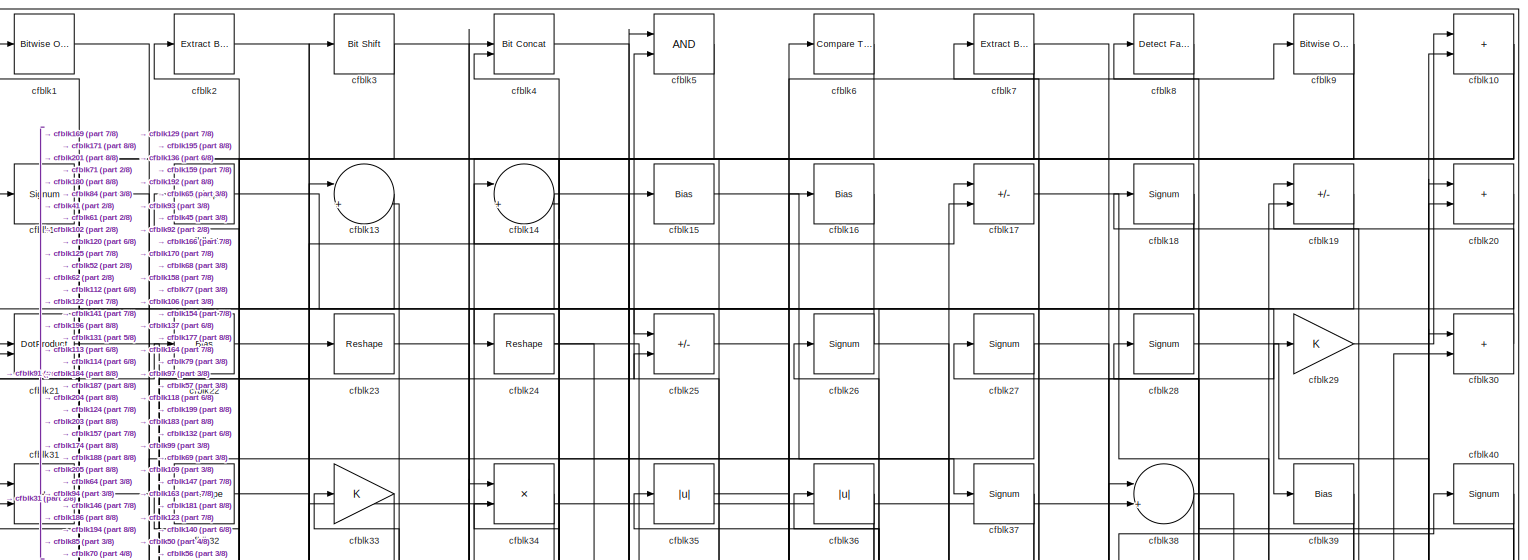
[diagram: root canvas - part 1/8, full width, top band]
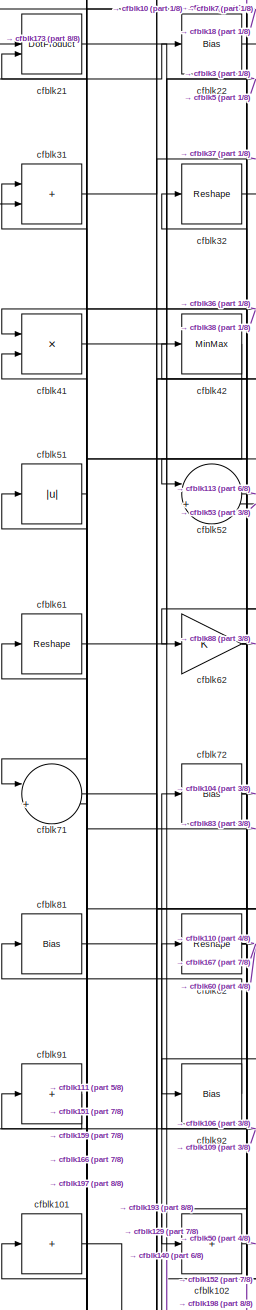
[diagram: root canvas - part 2/8, top left region]
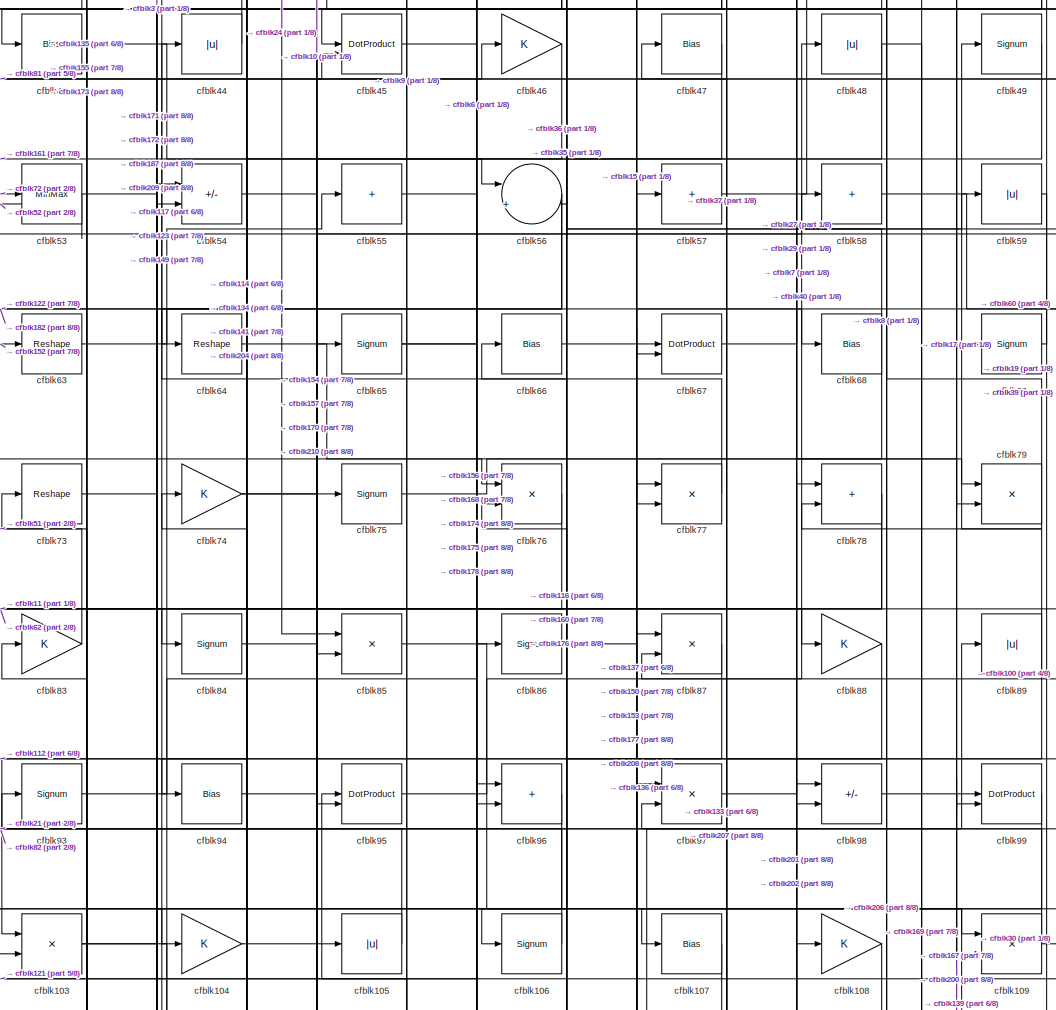
[diagram: root canvas - part 3/8, central region]
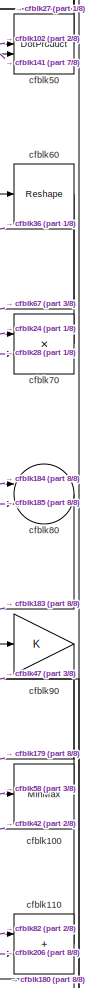
[diagram: root canvas - part 4/8, middle right region]
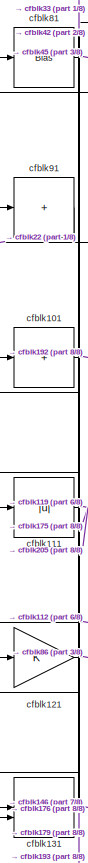
[diagram: root canvas - part 5/8, middle left region]
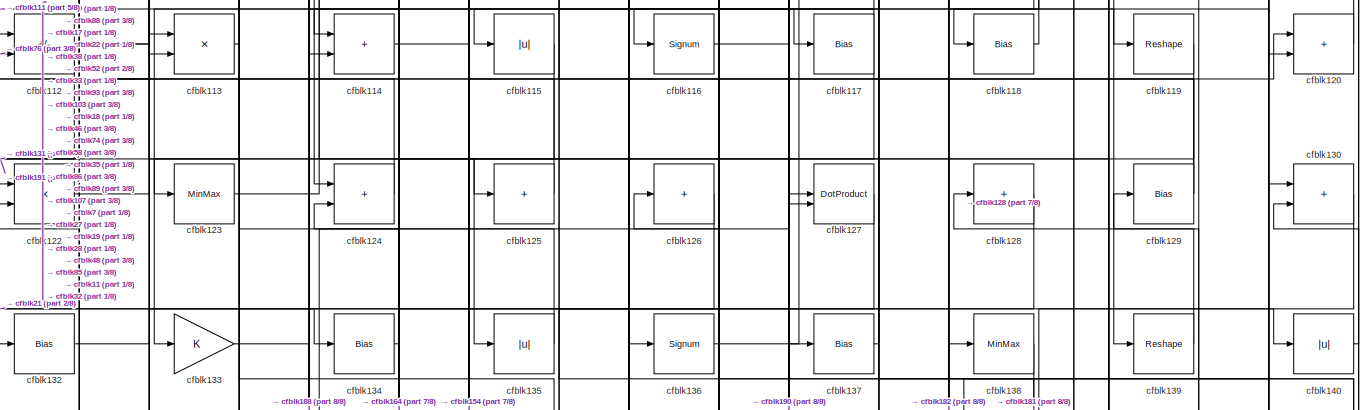
[diagram: root canvas - part 6/8, full width, middle band]
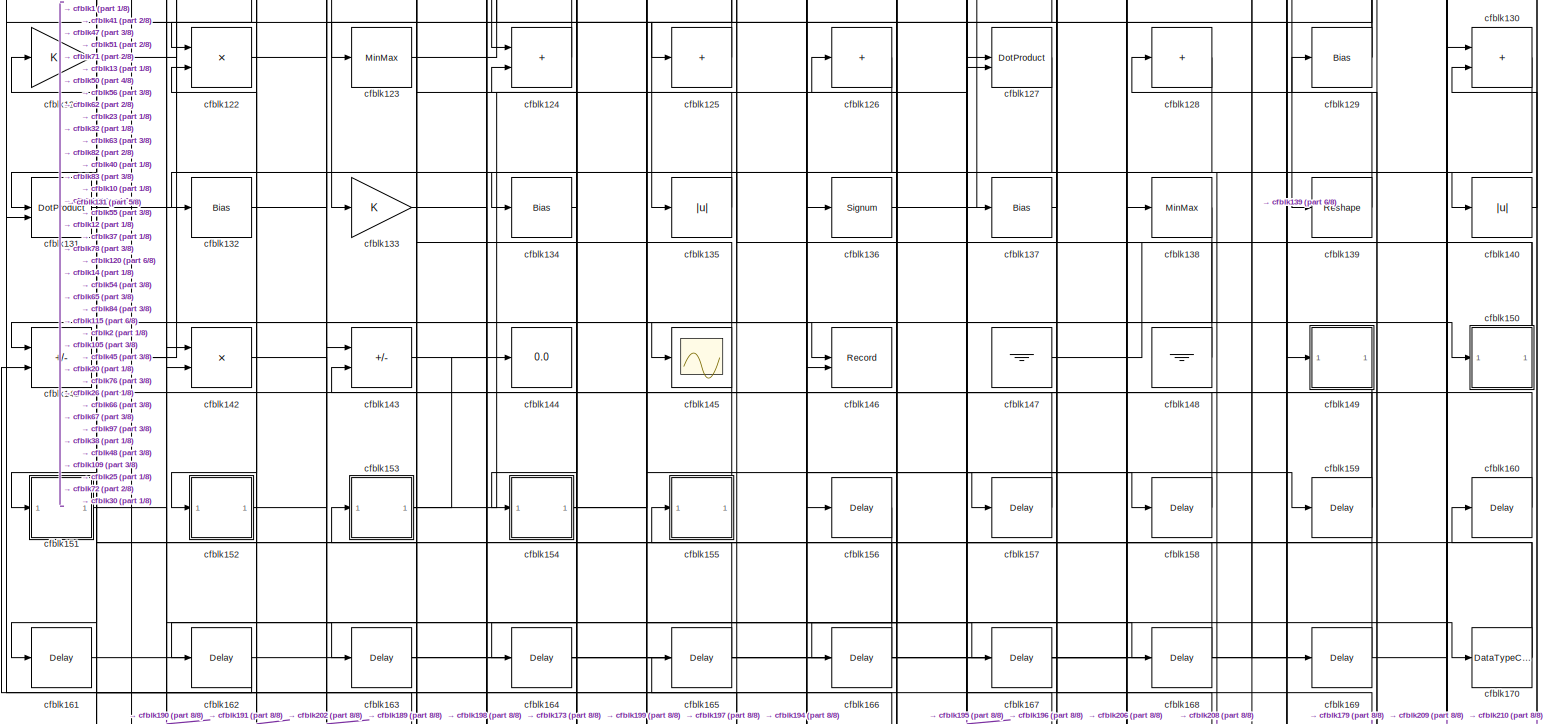
[diagram: root canvas - part 7/8, full width, bottom band]
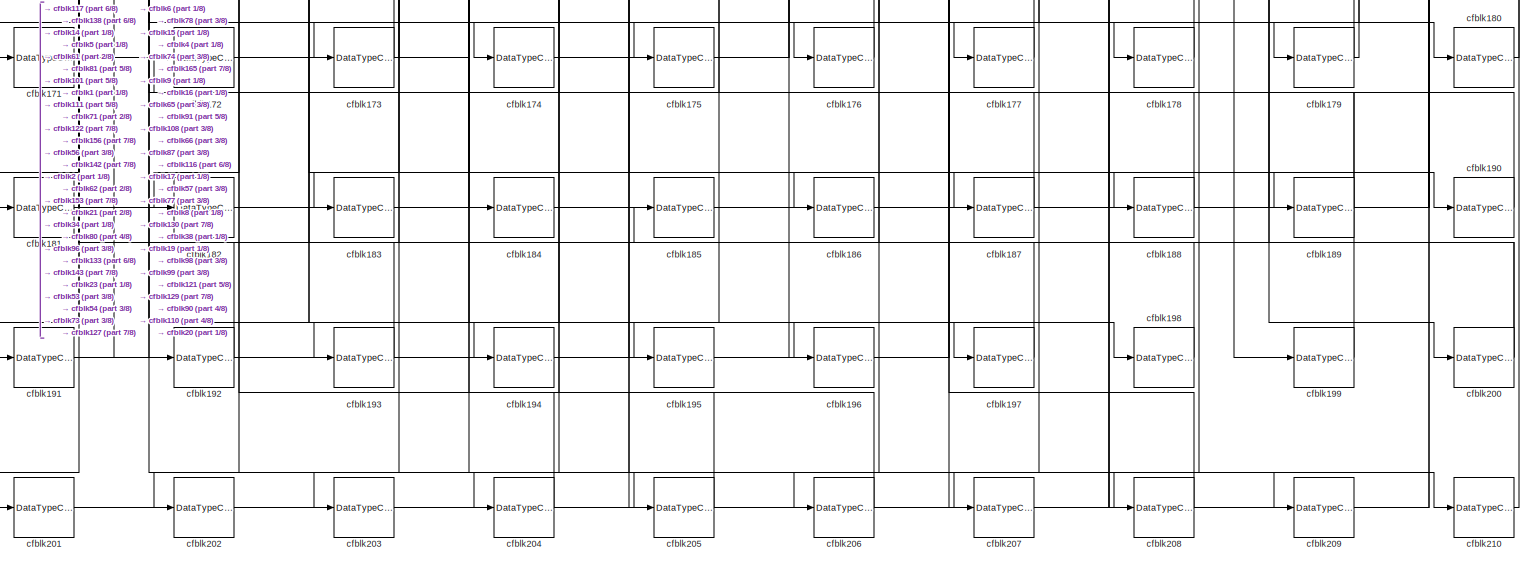
[diagram: root canvas - part 8/8, full width, bottom band]
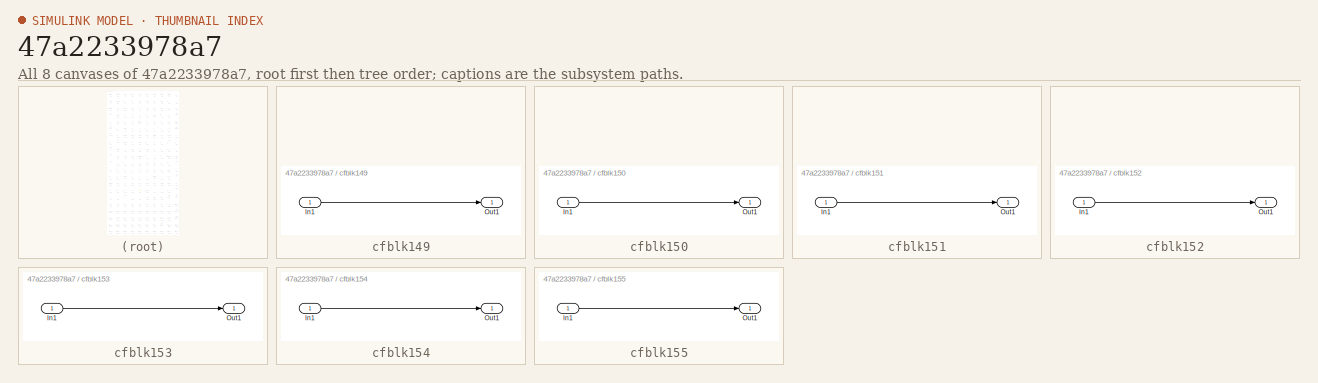
[diagram: thumbnail index - all 8 canvases of the model, root first then tree order]
MODEL slx_47a2233978a7
KIND model
CONFIG AbsTol = auto
CONFIG EnableMultiTasking = off
CONFIG FixedStep = auto
CONFIG MaxStep = auto
CONFIG MinStep = auto
CONFIG RelTol = 1e-3
CONFIG SampleTimeConstraint = Unconstrained
CONFIG SolverName = VariableStepAuto
CONFIG StartTime = 0.0
CONFIG StopTime = 10.0
BLOCK [Reference] cfblk1  REF=simulink/Logic and Bit
Operations/Bitwise
Operator
  LibrarySourceBlock = hdlsllib/Logic and Bit\nOperations/Bitwise\nOperator
  SourceBlock = simulink/Logic and Bit\nOperations/Bitwise\nOperator
  SourceType = Bitwise Operator
BLOCK [Sum] cfblk10
  IconShape = rectangular
BLOCK [MinMax] cfblk100
BLOCK [Sum] cfblk101
  IconShape = rectangular
  Inputs = +
BLOCK [Sum] cfblk102
  IconShape = rectangular
  Inputs = +
BLOCK [Product] cfblk103
  Inputs = */
  RndMeth = Zero
  SaturateOnIntegerOverflow = on
BLOCK [Gain] cfblk104
BLOCK [Abs] cfblk105
  SaturateOnIntegerOverflow = off
BLOCK [Signum] cfblk106
BLOCK [Bias] cfblk107
  Bias = 0.0
  SaturateOnIntegerOverflow = off
BLOCK [Gain] cfblk108
BLOCK [Product] cfblk109
  Inputs = */
  RndMeth = Zero
  SaturateOnIntegerOverflow = on
BLOCK [Signum] cfblk11
BLOCK [Sum] cfblk110
  IconShape = rectangular
BLOCK [Abs] cfblk111
  SaturateOnIntegerOverflow = off
BLOCK [Sum] cfblk112
  IconShape = rectangular
  Inputs = +-
BLOCK [Product] cfblk113
  Inputs = */
  RndMeth = Zero
  SaturateOnIntegerOverflow = on
BLOCK [Sum] cfblk114
  IconShape = rectangular
BLOCK [Abs] cfblk115
  SaturateOnIntegerOverflow = off
BLOCK [Signum] cfblk116
BLOCK [Bias] cfblk117
  Bias = 0.0
  SaturateOnIntegerOverflow = off
BLOCK [Bias] cfblk118
  Bias = 0.0
  SaturateOnIntegerOverflow = off
BLOCK [Reshape] cfblk119
BLOCK [Reshape] cfblk12
BLOCK [Sum] cfblk120
  IconShape = rectangular
BLOCK [Gain] cfblk121
BLOCK [Product] cfblk122
  Inputs = */
  RndMeth = Zero
  SaturateOnIntegerOverflow = on
BLOCK [MinMax] cfblk123
BLOCK [Sum] cfblk124
  IconShape = rectangular
BLOCK [Sum] cfblk125
  IconShape = rectangular
  Inputs = +
BLOCK [Sum] cfblk126
  IconShape = rectangular
  Inputs = +
BLOCK [DotProduct] cfblk127
  OutDataTypeStr = Inherit: Inherit via internal rule
BLOCK [Sum] cfblk128
  IconShape = rectangular
  Inputs = +
BLOCK [Bias] cfblk129
  Bias = 0.0
  SaturateOnIntegerOverflow = off
BLOCK [Sum] cfblk13
  Inputs = |++
BLOCK [Sum] cfblk130
  IconShape = rectangular
BLOCK [DotProduct] cfblk131
  OutDataTypeStr = Inherit: Inherit via internal rule
BLOCK [Bias] cfblk132
  Bias = 0.0
  SaturateOnIntegerOverflow = off
BLOCK [Gain] cfblk133
BLOCK [Bias] cfblk134
  Bias = 0.0
  SaturateOnIntegerOverflow = off
BLOCK [Abs] cfblk135
  SaturateOnIntegerOverflow = off
BLOCK [Signum] cfblk136
BLOCK [Bias] cfblk137
  Bias = 0.0
  SaturateOnIntegerOverflow = off
BLOCK [MinMax] cfblk138
BLOCK [Reshape] cfblk139
BLOCK [Sum] cfblk14
  Inputs = |++
BLOCK [Abs] cfblk140
  SaturateOnIntegerOverflow = off
BLOCK [Sum] cfblk141
  IconShape = rectangular
  Inputs = +-
BLOCK [Product] cfblk142
  Inputs = */
  RndMeth = Zero
  SaturateOnIntegerOverflow = on
BLOCK [Sum] cfblk143
  IconShape = rectangular
  Inputs = +-
BLOCK [Display] cfblk144
  Decimation = 1
BLOCK [Scope] cfblk145
  Floating = off
  NumInputPorts = 1
  ScopeSpecificationString = Simulink.scopes.TimeScopeBlockCfg('CurrentConfiguration', extmgr.ConfigurationSet(extmgr.Configuration('Core','General UI',true),extmgr.Configuration('Core','Source UI',true),extmgr.Configuration('Sources','WiredSimulink',true,'DataLoggingVariableName','ScopeData2','DataLoggingSaveFormat','Array','DataLoggingLimitDataPoints',true,'DataLoggingDecimation','1'),extmgr.Configuration('Visuals','Time Do...<+868ch>
BLOCK [Record] cfblk146
  CompatibilityTag = XY
  FileSettingsInternal = {"entries":[{"content":{"excelSettings":{"content":{},"type":"Streamout.ExcelSettings"}},"type":"Streamout.FileSettingStorage","uuid":""}],"packageUris":["http:\/\/schema.mathworks.com\/mf0\/streamout_blocks\/R2020a"],"version":"1.0"}
  Layout = [1 1]
  SignalsInternal = {"entries":[{"content":{"signals":[{"content":{"blockPath":[],"dimensions":[1],"domain":"","lineColor":"#a2142f","plots":[1],"port":1,"signalID":2602,"signalName":"XY Graph:1"},"type":"RecordBlkView.Signal","uuid":""},{"content":{"blockPath":[],"dimensions":[1],"domain":"","lineColor":"#139fff","plots":[1],"port":2,"signalID":2605,"signalName":"XY Graph:2"},"type":"RecordBlkView.Signal","uuid":""}...<+146ch>
  VisualizationBindings = {"xyplotplugin":{"info":[{"series":[{"bindingParametersList":[{"parameter":"X-Axis","signalID":2602,"signalName":"XY Graph:1"},{"parameter":"Y-Axis","signalID":2605,"signalName":"XY Graph:2"}],"seriesID":11351}],"subplotID":1}]}}
  st = -1
BLOCK [Ground] cfblk147
BLOCK [Ground] cfblk148
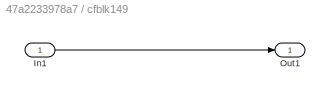
BLOCK [SubSystem] cfblk149
  LibrarySourceBlock = hdlsllib/Ports &\nSubsystems/Subsystem
BLOCK [Inport] cfblk149/In1
BLOCK [Outport] cfblk149/Out1
BLOCK [Bias] cfblk15
  Bias = 0.0
  SaturateOnIntegerOverflow = off
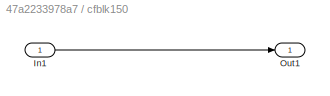
BLOCK [SubSystem] cfblk150
  LibrarySourceBlock = hdlsllib/Ports &\nSubsystems/Subsystem
BLOCK [Inport] cfblk150/In1
BLOCK [Outport] cfblk150/Out1
BLOCK [SubSystem] cfblk151
  LibrarySourceBlock = hdlsllib/Ports &\nSubsystems/Subsystem
BLOCK [Inport] cfblk151/In1
BLOCK [Outport] cfblk151/Out1
BLOCK [SubSystem] cfblk152
  LibrarySourceBlock = hdlsllib/Ports &\nSubsystems/Subsystem
BLOCK [Inport] cfblk152/In1
BLOCK [Outport] cfblk152/Out1
BLOCK [SubSystem] cfblk153
  LibrarySourceBlock = hdlsllib/Ports &\nSubsystems/Subsystem
BLOCK [Inport] cfblk153/In1
BLOCK [Outport] cfblk153/Out1
BLOCK [SubSystem] cfblk154
  LibrarySourceBlock = hdlsllib/Ports &\nSubsystems/Subsystem
BLOCK [Inport] cfblk154/In1
BLOCK [Outport] cfblk154/Out1
BLOCK [SubSystem] cfblk155
  LibrarySourceBlock = hdlsllib/Ports &\nSubsystems/Subsystem
BLOCK [Inport] cfblk155/In1
BLOCK [Outport] cfblk155/Out1
BLOCK [Delay] cfblk156
  InputPortMap = u0
  SampleTime = 1
BLOCK [Delay] cfblk157
  InputPortMap = u0
  SampleTime = 1
BLOCK [Delay] cfblk158
  InputPortMap = u0
  SampleTime = 1
BLOCK [Delay] cfblk159
  InputPortMap = u0
  SampleTime = 1
BLOCK [Bias] cfblk16
  Bias = 0.0
  SaturateOnIntegerOverflow = off
BLOCK [Delay] cfblk160
  InputPortMap = u0
  SampleTime = 1
BLOCK [Delay] cfblk161
  InputPortMap = u0
  SampleTime = 1
BLOCK [Delay] cfblk162
  InputPortMap = u0
  SampleTime = 1
BLOCK [Delay] cfblk163
  InputPortMap = u0
  SampleTime = 1
BLOCK [Delay] cfblk164
  InputPortMap = u0
  SampleTime = 1
BLOCK [Delay] cfblk165
  InputPortMap = u0
  SampleTime = 1
BLOCK [Delay] cfblk166
  InputPortMap = u0
  SampleTime = 1
BLOCK [Delay] cfblk167
  InputPortMap = u0
  SampleTime = 1
BLOCK [Delay] cfblk168
  InputPortMap = u0
  SampleTime = 1
BLOCK [Delay] cfblk169
  InputPortMap = u0
  SampleTime = 1
BLOCK [Sum] cfblk17
  IconShape = rectangular
  Inputs = +-
BLOCK [DataTypeConversion] cfblk170
  RndMeth = Floor
  SaturateOnIntegerOverflow = off
BLOCK [DataTypeConversion] cfblk171
  OutDataTypeStr = uint8
  RndMeth = Floor
  SaturateOnIntegerOverflow = off
BLOCK [DataTypeConversion] cfblk172
  OutDataTypeStr = uint8
  RndMeth = Floor
  SaturateOnIntegerOverflow = off
BLOCK [DataTypeConversion] cfblk173
  RndMeth = Floor
  SaturateOnIntegerOverflow = off
BLOCK [DataTypeConversion] cfblk174
  OutDataTypeStr = uint8
  RndMeth = Floor
  SaturateOnIntegerOverflow = off
BLOCK [DataTypeConversion] cfblk175
  OutDataTypeStr = uint8
  RndMeth = Floor
  SaturateOnIntegerOverflow = off
BLOCK [DataTypeConversion] cfblk176
  OutDataTypeStr = uint8
  RndMeth = Floor
  SaturateOnIntegerOverflow = off
BLOCK [DataTypeConversion] cfblk177
  OutDataTypeStr = uint8
  RndMeth = Floor
  SaturateOnIntegerOverflow = off
BLOCK [DataTypeConversion] cfblk178
  OutDataTypeStr = uint8
  RndMeth = Floor
  SaturateOnIntegerOverflow = off
BLOCK [DataTypeConversion] cfblk179
  RndMeth = Floor
  SaturateOnIntegerOverflow = off
BLOCK [Signum] cfblk18
BLOCK [DataTypeConversion] cfblk180
  OutDataTypeStr = uint8
  RndMeth = Floor
  SaturateOnIntegerOverflow = off
BLOCK [DataTypeConversion] cfblk181
  OutDataTypeStr = uint8
  RndMeth = Floor
  SaturateOnIntegerOverflow = off
BLOCK [DataTypeConversion] cfblk182
  OutDataTypeStr = uint8
  RndMeth = Floor
  SaturateOnIntegerOverflow = off
BLOCK [DataTypeConversion] cfblk183
  OutDataTypeStr = uint8
  RndMeth = Floor
  SaturateOnIntegerOverflow = off
BLOCK [DataTypeConversion] cfblk184
  OutDataTypeStr = uint8
  RndMeth = Floor
  SaturateOnIntegerOverflow = off
BLOCK [DataTypeConversion] cfblk185
  OutDataTypeStr = uint8
  RndMeth = Floor
  SaturateOnIntegerOverflow = off
BLOCK [DataTypeConversion] cfblk186
  RndMeth = Floor
  SaturateOnIntegerOverflow = off
BLOCK [DataTypeConversion] cfblk187
  OutDataTypeStr = uint8
  RndMeth = Floor
  SaturateOnIntegerOverflow = off
BLOCK [DataTypeConversion] cfblk188
  OutDataTypeStr = uint8
  RndMeth = Floor
  SaturateOnIntegerOverflow = off
BLOCK [DataTypeConversion] cfblk189
  RndMeth = Floor
  SaturateOnIntegerOverflow = off
BLOCK [Sum] cfblk19
  IconShape = rectangular
  Inputs = +-
BLOCK [DataTypeConversion] cfblk190
  OutDataTypeStr = uint8
  RndMeth = Floor
  SaturateOnIntegerOverflow = off
BLOCK [DataTypeConversion] cfblk191
  OutDataTypeStr = uint8
  RndMeth = Floor
  SaturateOnIntegerOverflow = off
BLOCK [DataTypeConversion] cfblk192
  RndMeth = Floor
  SaturateOnIntegerOverflow = off
BLOCK [DataTypeConversion] cfblk193
  OutDataTypeStr = uint8
  RndMeth = Floor
  SaturateOnIntegerOverflow = off
BLOCK [DataTypeConversion] cfblk194
  OutDataTypeStr = uint8
  RndMeth = Floor
  SaturateOnIntegerOverflow = off
BLOCK [DataTypeConversion] cfblk195
  OutDataTypeStr = uint8
  RndMeth = Floor
  SaturateOnIntegerOverflow = off
BLOCK [DataTypeConversion] cfblk196
  OutDataTypeStr = uint8
  RndMeth = Floor
  SaturateOnIntegerOverflow = off
BLOCK [DataTypeConversion] cfblk197
  OutDataTypeStr = uint8
  RndMeth = Floor
  SaturateOnIntegerOverflow = off
BLOCK [DataTypeConversion] cfblk198
  OutDataTypeStr = uint8
  RndMeth = Floor
  SaturateOnIntegerOverflow = off
BLOCK [DataTypeConversion] cfblk199
  OutDataTypeStr = uint8
  RndMeth = Floor
  SaturateOnIntegerOverflow = off
BLOCK [Reference] cfblk2  REF=simulink/Logic and Bit
Operations/Extract Bits
  LibrarySourceBlock = hdlsllib/Logic and Bit\nOperations/Extract Bits
  SourceBlock = simulink/Logic and Bit\nOperations/Extract Bits
  SourceType = Extract Bits
BLOCK [Sum] cfblk20
  IconShape = rectangular
BLOCK [DataTypeConversion] cfblk200
  RndMeth = Floor
  SaturateOnIntegerOverflow = off
BLOCK [DataTypeConversion] cfblk201
  OutDataTypeStr = uint8
  RndMeth = Floor
  SaturateOnIntegerOverflow = off
BLOCK [DataTypeConversion] cfblk202
  OutDataTypeStr = uint8
  RndMeth = Floor
  SaturateOnIntegerOverflow = off
BLOCK [DataTypeConversion] cfblk203
  OutDataTypeStr = uint8
  RndMeth = Floor
  SaturateOnIntegerOverflow = off
BLOCK [DataTypeConversion] cfblk204
  OutDataTypeStr = uint8
  RndMeth = Floor
  SaturateOnIntegerOverflow = off
BLOCK [DataTypeConversion] cfblk205
  OutDataTypeStr = uint8
  RndMeth = Floor
  SaturateOnIntegerOverflow = off
BLOCK [DataTypeConversion] cfblk206
  RndMeth = Floor
  SaturateOnIntegerOverflow = off
BLOCK [DataTypeConversion] cfblk207
  OutDataTypeStr = uint8
  RndMeth = Floor
  SaturateOnIntegerOverflow = off
BLOCK [DataTypeConversion] cfblk208
  OutDataTypeStr = uint8
  RndMeth = Floor
  SaturateOnIntegerOverflow = off
BLOCK [DataTypeConversion] cfblk209
  OutDataTypeStr = uint8
  RndMeth = Floor
  SaturateOnIntegerOverflow = off
BLOCK [DotProduct] cfblk21
  OutDataTypeStr = Inherit: Inherit via internal rule
BLOCK [DataTypeConversion] cfblk210
  OutDataTypeStr = uint8
  RndMeth = Floor
  SaturateOnIntegerOverflow = off
BLOCK [Bias] cfblk22
  Bias = 0.0
  SaturateOnIntegerOverflow = off
BLOCK [Reshape] cfblk23
BLOCK [Reshape] cfblk24
BLOCK [Sum] cfblk25
  IconShape = rectangular
  Inputs = +-
BLOCK [Signum] cfblk26
BLOCK [Signum] cfblk27
BLOCK [Signum] cfblk28
BLOCK [Gain] cfblk29
BLOCK [Reference] cfblk3  REF=hdlsllib/Logic and Bit
Operations/Bit Shift
  SourceBlock = hdlsllib/Logic and Bit\nOperations/Bit Shift
  SourceType = Bit Shift
BLOCK [Sum] cfblk30
  IconShape = rectangular
BLOCK [Sum] cfblk31
  IconShape = rectangular
BLOCK [Reshape] cfblk32
BLOCK [Gain] cfblk33
BLOCK [Product] cfblk34
  Inputs = */
  RndMeth = Zero
  SaturateOnIntegerOverflow = on
BLOCK [Abs] cfblk35
  SaturateOnIntegerOverflow = off
BLOCK [Abs] cfblk36
  SaturateOnIntegerOverflow = off
BLOCK [Signum] cfblk37
BLOCK [Sum] cfblk38
  Inputs = |++
BLOCK [Bias] cfblk39
  Bias = 0.0
  SaturateOnIntegerOverflow = off
BLOCK [Reference] cfblk4  REF=hdlsllib/Logic and Bit
Operations/Bit Concat
  SourceBlock = hdlsllib/Logic and Bit\nOperations/Bit Concat
  SourceType = Bit Concat
BLOCK [Signum] cfblk40
BLOCK [Product] cfblk41
  Inputs = */
  RndMeth = Zero
  SaturateOnIntegerOverflow = on
BLOCK [MinMax] cfblk42
BLOCK [Bias] cfblk43
  Bias = 0.0
  SaturateOnIntegerOverflow = off
BLOCK [Abs] cfblk44
  SaturateOnIntegerOverflow = off
BLOCK [DotProduct] cfblk45
  OutDataTypeStr = Inherit: Inherit via internal rule
BLOCK [Gain] cfblk46
BLOCK [Bias] cfblk47
  Bias = 0.0
  SaturateOnIntegerOverflow = off
BLOCK [Abs] cfblk48
  SaturateOnIntegerOverflow = off
BLOCK [Signum] cfblk49
BLOCK [Logic] cfblk5
  AllPortsSameDT = off
  OutDataTypeStr = boolean
BLOCK [DotProduct] cfblk50
  OutDataTypeStr = Inherit: Inherit via internal rule
BLOCK [Abs] cfblk51
  SaturateOnIntegerOverflow = off
BLOCK [Sum] cfblk52
  Inputs = |++
BLOCK [MinMax] cfblk53
BLOCK [Sum] cfblk54
  IconShape = rectangular
  Inputs = +-
BLOCK [Sum] cfblk55
  IconShape = rectangular
  Inputs = +
BLOCK [Sum] cfblk56
  Inputs = |++
BLOCK [Sum] cfblk57
  IconShape = rectangular
  Inputs = +
BLOCK [Sum] cfblk58
  IconShape = rectangular
  Inputs = +
BLOCK [Abs] cfblk59
  SaturateOnIntegerOverflow = off
BLOCK [Reference] cfblk6  REF=hdlsllib/Logic and Bit
Operations/Compare
To Zero
  SourceBlock = hdlsllib/Logic and Bit\nOperations/Compare\nTo Zero
  SourceType = Compare To Zero
BLOCK [Reshape] cfblk60
BLOCK [Reshape] cfblk61
BLOCK [Gain] cfblk62
BLOCK [Reshape] cfblk63
BLOCK [Reshape] cfblk64
BLOCK [Signum] cfblk65
BLOCK [Bias] cfblk66
  Bias = 0.0
  SaturateOnIntegerOverflow = off
BLOCK [DotProduct] cfblk67
  OutDataTypeStr = Inherit: Inherit via internal rule
BLOCK [Bias] cfblk68
  Bias = 0.0
  SaturateOnIntegerOverflow = off
BLOCK [Signum] cfblk69
BLOCK [Reference] cfblk7  REF=simulink/Logic and Bit
Operations/Extract Bits
  LibrarySourceBlock = hdlsllib/Logic and Bit\nOperations/Extract Bits
  SourceBlock = simulink/Logic and Bit\nOperations/Extract Bits
  SourceType = Extract Bits
BLOCK [Product] cfblk70
  Inputs = */
  RndMeth = Zero
  SaturateOnIntegerOverflow = on
BLOCK [Sum] cfblk71
  Inputs = |++
BLOCK [Bias] cfblk72
  Bias = 0.0
  SaturateOnIntegerOverflow = off
BLOCK [Reshape] cfblk73
BLOCK [Gain] cfblk74
BLOCK [Signum] cfblk75
BLOCK [Product] cfblk76
  Inputs = */
  RndMeth = Zero
  SaturateOnIntegerOverflow = on
BLOCK [Product] cfblk77
  Inputs = */
  RndMeth = Zero
  SaturateOnIntegerOverflow = on
BLOCK [Sum] cfblk78
  IconShape = rectangular
BLOCK [Product] cfblk79
  Inputs = */
  RndMeth = Zero
  SaturateOnIntegerOverflow = on
BLOCK [Reference] cfblk8  REF=hdlsllib/Logic and Bit
Operations/Detect Fall
Negative
  SourceBlock = hdlsllib/Logic and Bit\nOperations/Detect Fall\nNegative
  SourceType = Detect Fall Negative
BLOCK [Sum] cfblk80
  Inputs = |++
BLOCK [Bias] cfblk81
  Bias = 0.0
  SaturateOnIntegerOverflow = off
BLOCK [Reshape] cfblk82
BLOCK [Gain] cfblk83
BLOCK [Signum] cfblk84
BLOCK [Product] cfblk85
  Inputs = */
  RndMeth = Zero
  SaturateOnIntegerOverflow = on
BLOCK [Signum] cfblk86
BLOCK [Product] cfblk87
  Inputs = */
  RndMeth = Zero
  SaturateOnIntegerOverflow = on
BLOCK [Gain] cfblk88
BLOCK [Abs] cfblk89
  SaturateOnIntegerOverflow = off
BLOCK [Reference] cfblk9  REF=simulink/Logic and Bit
Operations/Bitwise
Operator
  LibrarySourceBlock = hdlsllib/Logic and Bit\nOperations/Bitwise\nOperator
  SourceBlock = simulink/Logic and Bit\nOperations/Bitwise\nOperator
  SourceType = Bitwise Operator
BLOCK [Gain] cfblk90
BLOCK [Sum] cfblk91
  IconShape = rectangular
  Inputs = +
BLOCK [Bias] cfblk92
  Bias = 0.0
  SaturateOnIntegerOverflow = off
BLOCK [Signum] cfblk93
BLOCK [Bias] cfblk94
  Bias = 0.0
  SaturateOnIntegerOverflow = off
BLOCK [DotProduct] cfblk95
  OutDataTypeStr = Inherit: Inherit via internal rule
BLOCK [Sum] cfblk96
  IconShape = rectangular
BLOCK [Product] cfblk97
  Inputs = */
  RndMeth = Zero
  SaturateOnIntegerOverflow = on
BLOCK [Sum] cfblk98
  IconShape = rectangular
  Inputs = +-
BLOCK [DotProduct] cfblk99
  OutDataTypeStr = Inherit: Inherit via internal rule
LINE cfblk100:1 -> cfblk47:1
LINE cfblk101:1 -> cfblk192:1
LINE cfblk102:1 -> cfblk50:1
NET cfblk103:1 -> cfblk117:1, cfblk149:1
LINE cfblk104:1 -> cfblk95:1
LINE cfblk105:1 -> cfblk73:1
LINE cfblk106:1 -> cfblk21:2
LINE cfblk107:1 -> cfblk133:1
LINE cfblk108:1 -> cfblk206:1
NET cfblk109:1 -> cfblk30:2, cfblk82:1
NET cfblk10:1 -> cfblk124:1, cfblk62:1, cfblk85:2
LINE cfblk110:1 -> cfblk42:1
NET cfblk111:1 -> cfblk119:1, cfblk175:1, cfblk205:1
NET cfblk112:1 -> cfblk131:2, cfblk17:1, cfblk38:2
LINE cfblk113:1 -> cfblk33:1
LINE cfblk114:1 -> cfblk58:1
LINE cfblk115:1 -> cfblk164:1
LINE cfblk116:1 -> cfblk190:1
NET cfblk117:1 -> cfblk115:1, cfblk191:1
LINE cfblk118:1 -> cfblk28:1
LINE cfblk119:1 -> cfblk135:1
LINE cfblk11:1 -> cfblk84:1
LINE cfblk120:1 -> cfblk32:1
LINE cfblk121:1 -> cfblk86:1
LINE cfblk122:1 -> cfblk23:1
LINE cfblk123:1 -> cfblk55:1
LINE cfblk124:1 -> cfblk12:1
LINE cfblk125:1 -> cfblk2:1
LINE cfblk126:1 -> cfblk145:1
LINE cfblk127:1 -> cfblk194:1
LINE cfblk128:1 -> cfblk162:1
NET cfblk129:1 -> cfblk25:2, cfblk72:1
LINE cfblk12:1 -> cfblk39:1
LINE cfblk130:1 -> cfblk208:1
LINE cfblk131:1 -> cfblk146:1
LINE cfblk132:1 -> cfblk134:1
LINE cfblk133:1 -> cfblk188:1
LINE cfblk134:1 -> cfblk74:1
LINE cfblk135:1 -> cfblk93:1
LINE cfblk136:1 -> cfblk89:1
LINE cfblk137:1 -> cfblk7:1
LINE cfblk138:1 -> cfblk181:1
LINE cfblk139:1 -> cfblk128:1
LINE cfblk13:1 -> cfblk102:1
LINE cfblk140:1 -> cfblk11:1
NET cfblk141:1 -> cfblk13:1, cfblk50:2
LINE cfblk142:1 -> cfblk189:1
LINE cfblk143:1 -> cfblk197:1
LINE cfblk147:1 -> cfblk30:1
LINE cfblk148:1 -> cfblk126:1
LINE cfblk149/In1:1 -> cfblk149/Out1:1
LINE cfblk149:1 -> cfblk155:1
NET cfblk14:1 -> cfblk146:2, cfblk201:1
LINE cfblk150/In1:1 -> cfblk150/Out1:1
NET cfblk150:1 -> cfblk105:1, cfblk97:2
LINE cfblk151/In1:1 -> cfblk151/Out1:1
LINE cfblk151:1 -> cfblk163:1
LINE cfblk152/In1:1 -> cfblk152/Out1:1
LINE cfblk152:1 -> cfblk63:1
LINE cfblk153/In1:1 -> cfblk153/Out1:1
NET cfblk153:1 -> cfblk144:1, cfblk67:1
LINE cfblk154/In1:1 -> cfblk154/Out1:1
NET cfblk154:1 -> cfblk120:1, cfblk65:1
LINE cfblk155/In1:1 -> cfblk155/Out1:1
LINE cfblk155:1 -> cfblk83:1
LINE cfblk156:1 -> cfblk202:1
LINE cfblk157:1 -> cfblk14:1
LINE cfblk158:1 -> cfblk13:2
LINE cfblk159:1 -> cfblk71:2
LINE cfblk15:1 -> cfblk77:2
LINE cfblk160:1 -> cfblk76:2
LINE cfblk161:1 -> cfblk78:1
LINE cfblk162:1 -> cfblk141:2
LINE cfblk163:1 -> cfblk10:2
LINE cfblk164:1 -> cfblk38:1
LINE cfblk165:1 -> cfblk124:2
LINE cfblk166:1 -> cfblk41:2
LINE cfblk167:1 -> cfblk109:2
LINE cfblk168:1 -> cfblk97:1
LINE cfblk169:1 -> cfblk1:1
LINE cfblk16:1 -> cfblk24:1
NET cfblk170:1 -> cfblk160:1, cfblk26:1
LINE cfblk171:1 -> cfblk54:1
LINE cfblk172:1 -> cfblk54:2
NET cfblk173:1 -> cfblk153:1, cfblk21:1
LINE cfblk174:1 -> cfblk96:1
LINE cfblk175:1 -> cfblk96:2
LINE cfblk176:1 -> cfblk91:1
LINE cfblk177:1 -> cfblk87:1
LINE cfblk178:1 -> cfblk87:2
NET cfblk179:1 -> cfblk121:1, cfblk129:1
LINE cfblk17:1 -> cfblk69:1
LINE cfblk180:1 -> cfblk90:1
LINE cfblk181:1 -> cfblk20:1
LINE cfblk182:1 -> cfblk138:1
LINE cfblk183:1 -> cfblk19:2
LINE cfblk184:1 -> cfblk80:1
LINE cfblk185:1 -> cfblk80:2
NET cfblk186:1 -> cfblk17:2, cfblk20:2
LINE cfblk187:1 -> cfblk4:1
LINE cfblk188:1 -> cfblk4:2
NET cfblk189:1 -> cfblk165:1, cfblk172:1, cfblk185:1
NET cfblk18:1 -> cfblk114:2, cfblk31:2
LINE cfblk190:1 -> cfblk142:1
LINE cfblk191:1 -> cfblk142:2
NET cfblk192:1 -> cfblk16:1, cfblk81:1
LINE cfblk193:1 -> cfblk101:1
LINE cfblk194:1 -> cfblk5:1
LINE cfblk195:1 -> cfblk127:1
LINE cfblk196:1 -> cfblk127:2
LINE cfblk197:1 -> cfblk61:1
LINE cfblk198:1 -> cfblk143:1
LINE cfblk199:1 -> cfblk143:2
LINE cfblk19:1 -> cfblk118:1
LINE cfblk1:1 -> cfblk180:1
NET cfblk200:1 -> cfblk66:1, cfblk99:1
LINE cfblk201:1 -> cfblk98:1
LINE cfblk202:1 -> cfblk98:2
LINE cfblk203:1 -> cfblk15:1
LINE cfblk204:1 -> cfblk34:1
LINE cfblk205:1 -> cfblk34:2
NET cfblk206:1 -> cfblk110:2, cfblk122:2, cfblk57:1
LINE cfblk207:1 -> cfblk108:1
LINE cfblk208:1 -> cfblk77:1
LINE cfblk209:1 -> cfblk130:1
LINE cfblk20:1 -> cfblk166:1
LINE cfblk210:1 -> cfblk130:2
LINE cfblk21:1 -> cfblk140:1
LINE cfblk22:1 -> cfblk113:2
LINE cfblk23:1 -> cfblk184:1
NET cfblk24:1 -> cfblk70:1, cfblk85:1
LINE cfblk25:1 -> cfblk159:1
NET cfblk26:1 -> cfblk158:1, cfblk25:1
NET cfblk27:1 -> cfblk120:2, cfblk64:1
LINE cfblk28:1 -> cfblk70:2
LINE cfblk29:1 -> cfblk10:1
LINE cfblk2:1 -> cfblk196:1
LINE cfblk30:1 -> cfblk18:1
LINE cfblk31:1 -> cfblk37:1
LINE cfblk32:1 -> cfblk125:1
LINE cfblk33:1 -> cfblk131:1
LINE cfblk34:1 -> cfblk203:1
LINE cfblk35:1 -> cfblk136:1
NET cfblk36:1 -> cfblk45:1, cfblk92:1
NET cfblk37:1 -> cfblk106:1, cfblk154:1
NET cfblk38:1 -> cfblk199:1, cfblk41:1
NET cfblk39:1 -> cfblk132:1, cfblk99:2
NET cfblk3:1 -> cfblk109:1, cfblk71:1
NET cfblk40:1 -> cfblk123:1, cfblk56:2
LINE cfblk41:1 -> cfblk3:1
LINE cfblk42:1 -> cfblk111:1
LINE cfblk43:1 -> cfblk56:1
LINE cfblk44:1 -> cfblk43:1
LINE cfblk45:1 -> cfblk156:1
LINE cfblk46:1 -> cfblk114:1
LINE cfblk47:1 -> cfblk161:1
NET cfblk48:1 -> cfblk116:1, cfblk169:1
LINE cfblk49:1 -> cfblk95:2
LINE cfblk4:1 -> cfblk186:1
LINE cfblk50:1 -> cfblk27:1
LINE cfblk51:1 -> cfblk151:1
LINE cfblk52:1 -> cfblk113:1
NET cfblk53:1 -> cfblk187:1, cfblk52:2
LINE cfblk54:1 -> cfblk170:1
LINE cfblk55:1 -> cfblk168:1
NET cfblk56:1 -> cfblk122:1, cfblk182:1
LINE cfblk57:1 -> cfblk40:1
LINE cfblk58:1 -> cfblk100:1
LINE cfblk59:1 -> cfblk103:1
LINE cfblk5:1 -> cfblk171:1
LINE cfblk60:1 -> cfblk67:2
LINE cfblk61:1 -> cfblk5:2
NET cfblk62:1 -> cfblk152:1, cfblk198:1, cfblk88:1
LINE cfblk63:1 -> cfblk68:1
LINE cfblk64:1 -> cfblk76:1
NET cfblk65:1 -> cfblk178:1, cfblk9:1
LINE cfblk66:1 -> cfblk150:1
LINE cfblk67:1 -> cfblk59:1
NET cfblk68:1 -> cfblk103:2, cfblk35:1
LINE cfblk69:1 -> cfblk19:1
LINE cfblk6:1 -> cfblk174:1
LINE cfblk70:1 -> cfblk36:1
LINE cfblk71:1 -> cfblk193:1
NET cfblk72:1 -> cfblk104:1, cfblk53:1
LINE cfblk73:1 -> cfblk209:1
NET cfblk74:1 -> cfblk210:1, cfblk75:1
LINE cfblk75:1 -> cfblk79:1
LINE cfblk76:1 -> cfblk112:2
LINE cfblk77:1 -> cfblk44:1
NET cfblk78:1 -> cfblk141:1, cfblk204:1
NET cfblk79:1 -> cfblk78:2, cfblk8:1
NET cfblk7:1 -> cfblk14:2, cfblk52:1, cfblk79:2
LINE cfblk80:1 -> cfblk183:1
LINE cfblk81:1 -> cfblk45:2
NET cfblk82:1 -> cfblk110:1, cfblk167:1, cfblk60:1
LINE cfblk83:1 -> cfblk51:1
LINE cfblk84:1 -> cfblk157:1
LINE cfblk85:1 -> cfblk139:1
LINE cfblk86:1 -> cfblk137:1
LINE cfblk87:1 -> cfblk176:1
LINE cfblk88:1 -> cfblk112:1
NET cfblk89:1 -> cfblk107:1, cfblk49:1
LINE cfblk8:1 -> cfblk177:1
LINE cfblk90:1 -> cfblk179:1
LINE cfblk91:1 -> cfblk22:1
LINE cfblk92:1 -> cfblk31:1
LINE cfblk93:1 -> cfblk6:1
LINE cfblk94:1 -> cfblk46:1
LINE cfblk95:1 -> cfblk48:1
LINE cfblk96:1 -> cfblk173:1
LINE cfblk97:1 -> cfblk29:1
LINE cfblk98:1 -> cfblk200:1
LINE cfblk99:1 -> cfblk207:1
NET cfblk9:1 -> cfblk195:1, cfblk94:1
note: NET lines group one-source signal fan-out (src -> all destinations, sorted); 1:1 wires keep LINE
